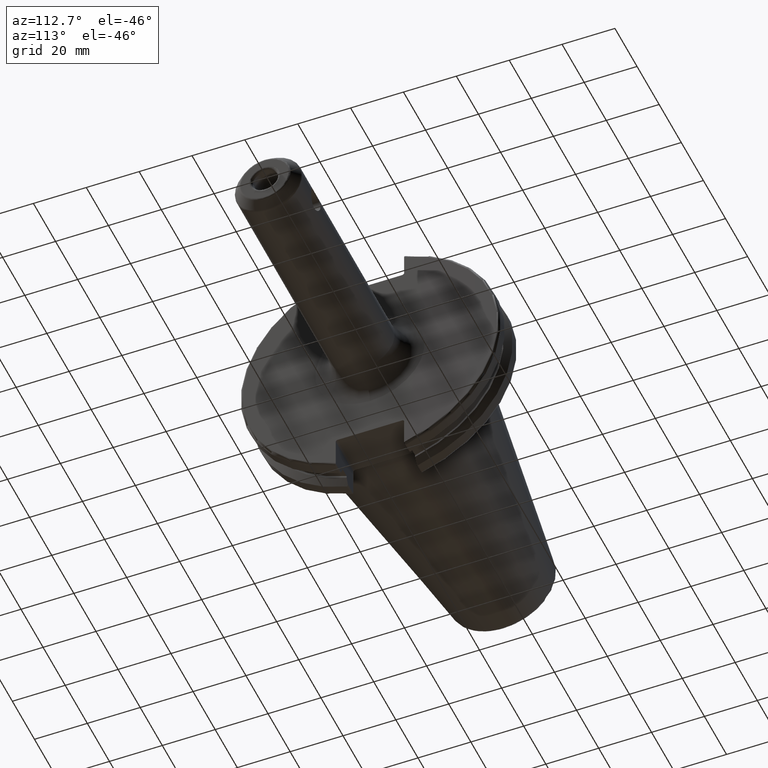
[diagram: clean part render]
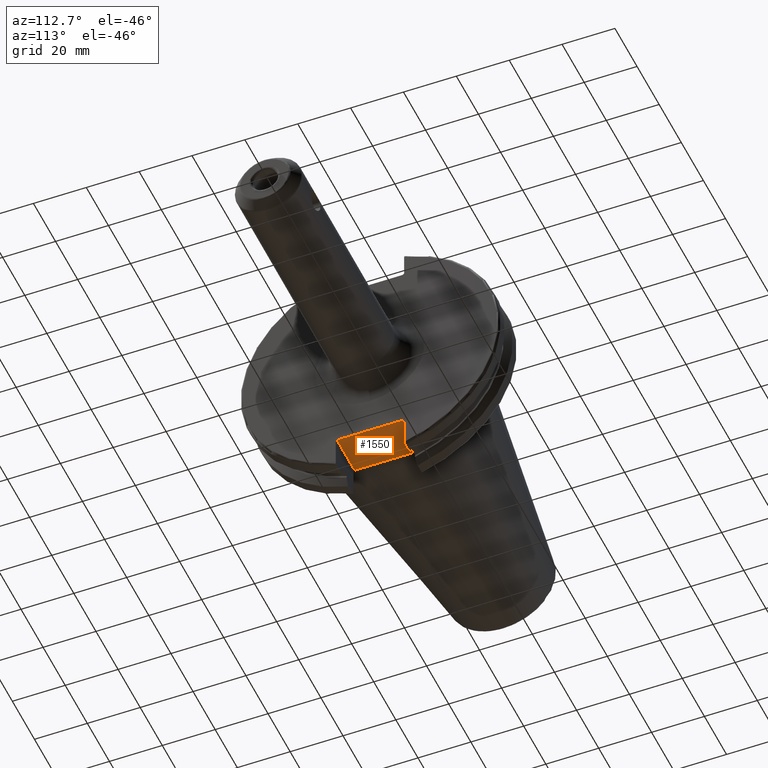
[diagram: same view with one face highlighted and labeled with its STEP entity id]
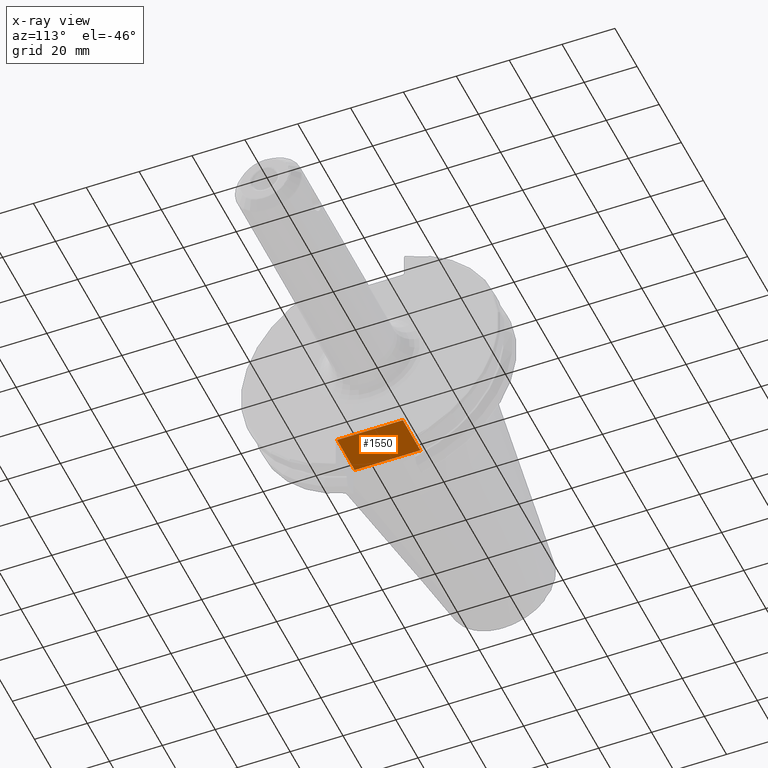
[diagram: x-ray of the same camera — body ghosted, the highlighted face saturated]
A machine part, auxiliary view. The second image highlights one B-rep face of the part: STEP entity #1550.
The next image is the same camera in x-ray: the body ghosted, the highlighted face saturated — about 0% of this face is hidden behind the body in this view.
In plain terms, the highlighted planar face has unit normal (0, 0, 1).
Its self-contained STEP definition (entity closure, byte-faithful):
#54=PLANE('',#1729);
#252=FACE_OUTER_BOUND('',#358,.T.);
#358=EDGE_LOOP('',(#1341,#1342,#1343,#1344));
#400=LINE('',#2433,#493);
#440=LINE('',#2933,#533);
#464=LINE('',#3151,#557);
#465=LINE('',#3153,#558);
#493=VECTOR('',#1852,10.);
#533=VECTOR('',#2022,10.);
#557=VECTOR('',#2104,10.);
#558=VECTOR('',#2107,10.);
#649=VERTEX_POINT('',#2430);
#650=VERTEX_POINT('',#2432);
#726=VERTEX_POINT('',#2930);
#727=VERTEX_POINT('',#2932);
#814=EDGE_CURVE('',#649,#650,#400,.T.);
#914=EDGE_CURVE('',#726,#727,#440,.T.);
#972=EDGE_CURVE('',#650,#726,#464,.T.);
#973=EDGE_CURVE('',#727,#649,#465,.T.);
#1341=ORIENTED_EDGE('',*,*,#972,.F.);
#1342=ORIENTED_EDGE('',*,*,#814,.F.);
#1343=ORIENTED_EDGE('',*,*,#973,.F.);
#1344=ORIENTED_EDGE('',*,*,#914,.F.);
#1550=ADVANCED_FACE('',(#252),#54,.F.);
#1729=AXIS2_PLACEMENT_3D('',#3152,#2105,#2106);
#1852=DIRECTION('',(0.,1.,0.));
#2022=DIRECTION('',(0.,-1.,0.));
#2104=DIRECTION('',(-1.,2.63163976207444E-16,0.));
#2105=DIRECTION('center_axis',(0.,0.,1.));
#2106=DIRECTION('ref_axis',(1.,0.,0.));
#2107=DIRECTION('',(1.,2.63163976207445E-16,0.));
#2430=CARTESIAN_POINT('',(19.05,-12.45,-35.306));
#2432=CARTESIAN_POINT('',(19.05,12.45,-35.306));
#2433=CARTESIAN_POINT('',(19.05,-3.33066907387547E-15,-35.306));
#2930=CARTESIAN_POINT('',(3.175,12.45,-35.306));
#2932=CARTESIAN_POINT('',(3.175,-12.45,-35.306));
#2933=CARTESIAN_POINT('',(3.175,24.60625,-35.306));
#3151=CARTESIAN_POINT('',(10.63125,12.45,-35.306));
#3152=CARTESIAN_POINT('Origin',(18.0875,-6.66133814775094E-15,-35.306));
#3153=CARTESIAN_POINT('',(19.06875,-12.45,-35.306));